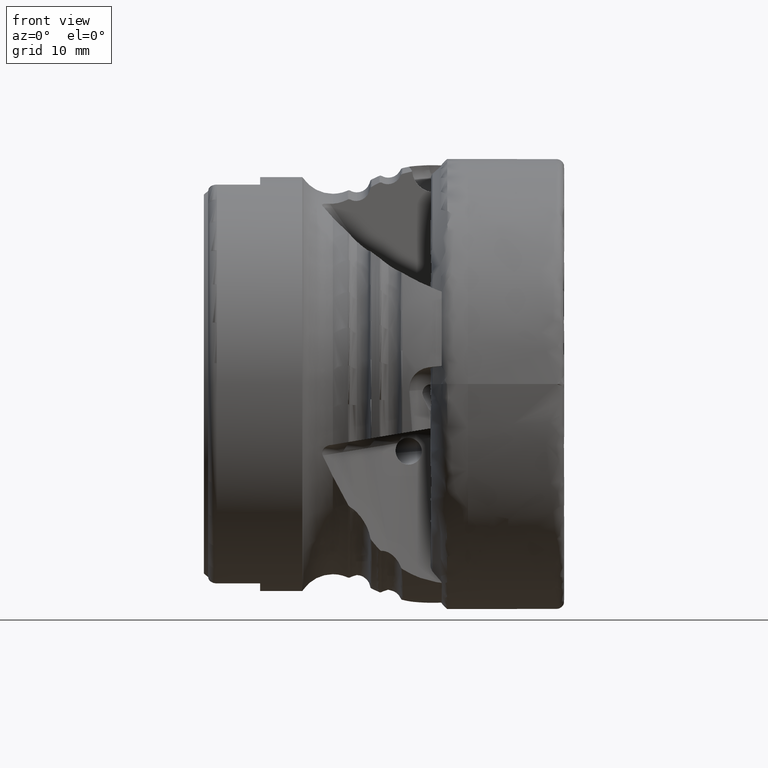
[diagram: clean part render]
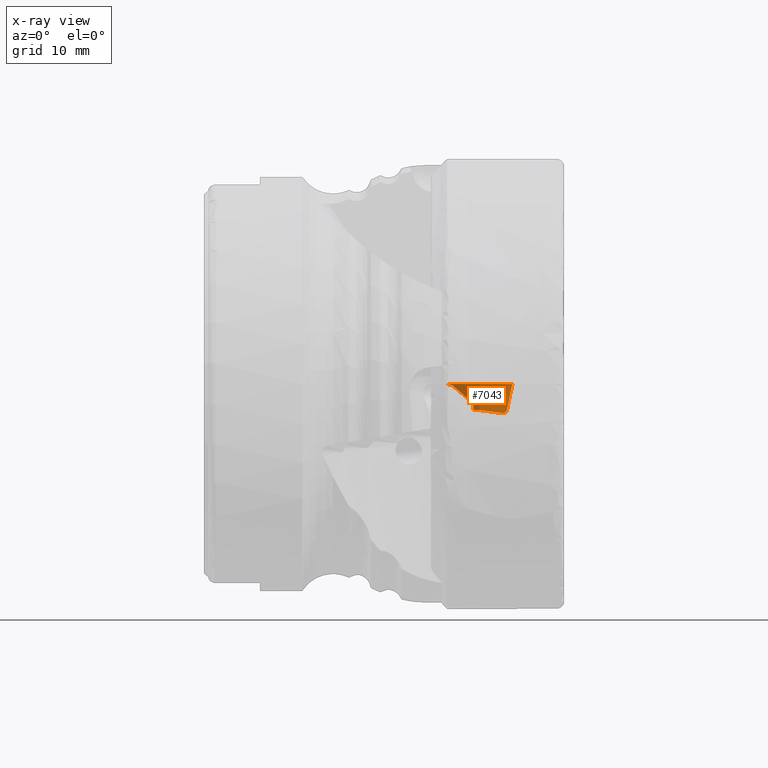
[diagram: x-ray — body ghosted, one internal face saturated and labeled with its STEP entity id]
A machine part, front view, then the same camera in x-ray: the body is ghosted and one INTERNAL B-rep face — a face not visible from any outside direction — is saturated and labeled: STEP entity #7043.
In plain terms, the highlighted face is a freeform B-spline surface patch.
Its self-contained STEP definition (entity closure, byte-faithful):
#12 = CARTESIAN_POINT ( 'NONE',  ( -9.327733172968539300, 13.47254433236477500, -2.097750486982430800 ) ) ;
#68 = CARTESIAN_POINT ( 'NONE',  ( -9.022713587255351400, 12.75545056541306200, -2.922412867499101900 ) ) ;
#200 = CARTESIAN_POINT ( 'NONE',  ( -5.050276232107880700, 11.11171256493070700, -1.105884605139769500 ) ) ;
#222 = CARTESIAN_POINT ( 'NONE',  ( -8.604400643255553800, 11.80468172274491100, -2.908084505969913600 ) ) ;
#224 = VERTEX_POINT ( 'NONE', #6227 ) ;
#294 = CARTESIAN_POINT ( 'NONE',  ( -6.285281551935681500, 11.31469702868192900, -1.126086477014450700 ) ) ;
#351 = CARTESIAN_POINT ( 'NONE',  ( -5.050276232107880700, 10.94783426609678200, -2.199559448526297300 ) ) ;
#448 = CARTESIAN_POINT ( 'NONE',  ( -9.297918661963407800, 13.38187534570622400, -2.688589326457111500 ) ) ;
#490 = CARTESIAN_POINT ( 'NONE',  ( -9.675087337857400300, 14.22072697437721800, -1.415306861382773500 ) ) ;
#495 = EDGE_CURVE ( 'NONE', #11996, #5180, #8086, .T. ) ;
#522 = CARTESIAN_POINT ( 'NONE',  ( -5.972594624334143500, 11.19284881002046500, -1.370728646853182100E-015 ) ) ;
#540 = CARTESIAN_POINT ( 'NONE',  ( -8.697320431042678400, 12.32520806946325800, -1.226656807356756500 ) ) ;
#594 = CARTESIAN_POINT ( 'NONE',  ( -9.191007835841970700, 13.39078045257451100, 5.811323644522303800E-014 ) ) ;
#630 = CARTESIAN_POINT ( 'NONE',  ( -9.675087337857400300, 14.22072697437720900, -1.741536777071947200E-015 ) ) ;
#647 = CARTESIAN_POINT ( 'NONE',  ( -7.881515647654891800, 11.33412013398271000, -3.474667101268508900 ) ) ;
#685 = CARTESIAN_POINT ( 'NONE',  ( -8.612288684682059900, 12.18211301162843400, -1.491878570654208600E-015 ) ) ;
#697 = CARTESIAN_POINT ( 'NONE',  ( -11.61672753739851100, 17.98962876824163400, 7.806255641895631900E-014 ) ) ;
#714 = CARTESIAN_POINT ( 'NONE',  ( -9.453979345196078300, 13.70888033134533400, -2.001711997554833600 ) ) ;
#806 = CARTESIAN_POINT ( 'NONE',  ( -11.24200181012750100, 17.01490707717644200, -3.418511709050888300 ) ) ;
#870 = CARTESIAN_POINT ( 'NONE',  ( -9.268775923578369100, 13.27279578968369300, -2.627351999662451500 ) ) ;
#924 = CARTESIAN_POINT ( 'NONE',  ( -9.198759914608093200, 13.09425418710934600, -2.878641764758926400 ) ) ;
#1128 = CARTESIAN_POINT ( 'NONE',  ( -9.260172563981408100, 13.27720306228545500, -2.521842621178799400 ) ) ;
#1208 = CARTESIAN_POINT ( 'NONE',  ( -10.23060515299965100, 15.26960796372149100, -1.314476557952900700 ) ) ;
#1259 = CARTESIAN_POINT ( 'NONE',  ( -9.753074190731954500, 14.27494363536506400, -1.766847344200421300 ) ) ;
#1366 = CARTESIAN_POINT ( 'NONE',  ( -8.173395873958789100, 11.57049893888079800, -2.959438690530028700 ) ) ;
#1391 = CARTESIAN_POINT ( 'NONE',  ( -5.751385641358613300, 10.62254100904486100, -3.256520430318925000 ) ) ;
#1409 = CARTESIAN_POINT ( 'NONE',  ( -5.932567042074834900, 10.69350056984833900, -3.256637702511473400 ) ) ;
#1438 = CARTESIAN_POINT ( 'NONE',  ( -5.050276232107879800, 11.11171256493070600, 4.770489558936219500E-014 ) ) ;
#1465 = B_SPLINE_CURVE_WITH_KNOTS ( 'NONE', 3,
 ( #14805, #3220, #10152, #714, #1857, #1907, #8884 ),
 .UNSPECIFIED., .F., .F.,
 ( 4, 3, 4 ),
 ( 1.788112030672749000E-018, 0.0002846334342057872200, 0.0005693134101099638900 ),
 .UNSPECIFIED. ) ;
#1491 = CARTESIAN_POINT ( 'NONE',  ( -5.585466795970161200, 10.55039281965642700, -3.234402177016453300 ) ) ;
#1540 = CARTESIAN_POINT ( 'NONE',  ( -6.914384804467702300, 11.04166457576252300, -3.385009880882780700 ) ) ;
#1587 = CARTESIAN_POINT ( 'NONE',  ( -7.164567537284028700, 11.63161736953586500, 4.987329993433320400E-014 ) ) ;
#1637 = CARTESIAN_POINT ( 'NONE',  ( -8.574156164133272600, 11.54864064897245500, -3.540432009984023400 ) ) ;
#1687 = CARTESIAN_POINT ( 'NONE',  ( -10.11790348174986900, 14.88394821685731800, -2.990374912154815800 ) ) ;
#1703 = ORIENTED_EDGE ( 'NONE', *, *, #10097, .F. ) ;
#1738 = CARTESIAN_POINT ( 'NONE',  ( -9.675087337857400300, 13.59616568424822900, -4.168135598352149500 ) ) ;
#1758 = CARTESIAN_POINT ( 'NONE',  ( -5.522037365477625100, 10.64921861473035100, -2.914298168814653400 ) ) ;
#1785 = CARTESIAN_POINT ( 'NONE',  ( -8.237730382612779700, 11.96314495333715300, -1.190622755551234100 ) ) ;
#1827 = CARTESIAN_POINT ( 'NONE',  ( -9.191007835841970700, 13.39078045257450900, -1.639897641933031800E-015 ) ) ;
#1838 = CARTESIAN_POINT ( 'NONE',  ( -9.100063648910188300, 12.90944086147559800, -2.923127320339364000 ) ) ;
#1842 = CARTESIAN_POINT ( 'NONE',  ( -7.485648292287563300, 11.71447879099634500, -1.165874447930338200 ) ) ;
#1857 = CARTESIAN_POINT ( 'NONE',  ( -9.496981936507854300, 13.78748707756267700, -1.970440300205801100 ) ) ;
#1897 = CARTESIAN_POINT ( 'NONE',  ( -11.24200181012750300, 16.51113833094985800, -5.061769990511416000 ) ) ;
#1907 = CARTESIAN_POINT ( 'NONE',  ( -9.540599783445985700, 13.86596572222189900, -1.939686145547635700 ) ) ;
#1926 = CARTESIAN_POINT ( 'NONE',  ( -10.40198357540867700, 15.65283747423813100, -1.916919731039946700E-015 ) ) ;
#1941 = CARTESIAN_POINT ( 'NONE',  ( -12.00900473343443900, 18.74272875410185400, -1.865355593600252800 ) ) ;
#1972 = CARTESIAN_POINT ( 'NONE',  ( -12.13905769514250600, 18.99334384272782100, -2.326013774210171800E-015 ) ) ;
#2037 = CARTESIAN_POINT ( 'NONE',  ( -12.13905769514250600, 18.99334384272782800, -1.890297866603418900 ) ) ;
#2080 = CARTESIAN_POINT ( 'NONE',  ( -12.32536582493238700, 19.34448125936291200, 8.326672684688674100E-014 ) ) ;
#2382 = CARTESIAN_POINT ( 'NONE',  ( -6.987414104110923700, 11.14458807036642600, -3.120126934605866000 ) ) ;
#2442 = CARTESIAN_POINT ( 'NONE',  ( -9.908307203312228100, 14.60692162358216400, -1.612479613385117400 ) ) ;
#2482 = CARTESIAN_POINT ( 'NONE',  ( -8.642016997257949000, 11.88262707674004100, -2.908703173846212100 ) ) ;
#2490 = CARTESIAN_POINT ( 'NONE',  ( -11.23555316334822900, 17.25358354494659700, -0.4549852518349870600 ) ) ;
#2558 = CARTESIAN_POINT ( 'NONE',  ( -4.862334954928847700, 11.09165466854700500, -2.228454800557692700 ) ) ;
#2578 = CARTESIAN_POINT ( 'NONE',  ( -5.882490573300068500, 10.67505638054573500, -3.252631752760433600 ) ) ;
#2605 = B_SPLINE_CURVE_WITH_KNOTS ( 'NONE', 3,
 ( #2926, #2780, #8781, #7552 ),
 .UNSPECIFIED., .F., .F.,
 ( 4, 4 ),
 ( 0.001614292485619181800, 0.003105760326318145200 ),
 .UNSPECIFIED. ) ;
#2610 = CARTESIAN_POINT ( 'NONE',  ( -4.905304933193193900, 11.21846603086572200, -1.116509161330633700 ) ) ;
#2658 = CARTESIAN_POINT ( 'NONE',  ( -6.634472088039784100, 10.94083963478700600, -3.354100282144315800 ) ) ;
#2708 = CARTESIAN_POINT ( 'NONE',  ( -6.914384804467701400, 11.54888083310773300, -1.149393439156804400 ) ) ;
#2724 = CARTESIAN_POINT ( 'NONE',  ( -5.784644675520819000, 10.64477182791467400, -3.225074104981703100 ) ) ;
#2761 = CARTESIAN_POINT ( 'NONE',  ( -5.585466795970161200, 11.03504173493452000, 4.770489558936219500E-014 ) ) ;
#2780 = CARTESIAN_POINT ( 'NONE',  ( -12.06035103561225500, 18.84368438268096900, -0.04808295347537695100 ) ) ;
#2812 = CARTESIAN_POINT ( 'NONE',  ( -8.612288684682059900, 12.18211301162844000, -1.212415382319311100 ) ) ;
#2857 = CARTESIAN_POINT ( 'NONE',  ( -9.191007835841970700, 13.39078045257451600, -1.332707075239310000 ) ) ;
#2889 = CARTESIAN_POINT ( 'NONE',  ( -4.944788779723490200, 11.19075671436133300, -1.370472439027935900E-015 ) ) ;
#2905 = CARTESIAN_POINT ( 'NONE',  ( -9.038364078933765800, 13.15433350174967900, -1.309174875200705500 ) ) ;
#2926 = CARTESIAN_POINT ( 'NONE',  ( -12.29181021467512900, 19.28104108027483600, 9.167267699501834300E-014 ) ) ;
#2961 = CARTESIAN_POINT ( 'NONE',  ( -7.881515647654892700, 11.67993369177811900, -2.346647554710441100 ) ) ;
#2996 = CARTESIAN_POINT ( 'NONE',  ( -11.24200181012750300, 17.26960348185804900, -2.114916462660144600E-015 ) ) ;
#3009 = CARTESIAN_POINT ( 'NONE',  ( -9.191007835841970700, 13.19328989404869500, -2.650700105450862800 ) ) ;
#3054 = CARTESIAN_POINT ( 'NONE',  ( -10.40198357540867500, 15.42198553650012400, -3.098473467660444000 ) ) ;
#3092 = CARTESIAN_POINT ( 'NONE',  ( -8.237730382612777900, 11.96314495333715100, -1.465062717484015400E-015 ) ) ;
#3106 = CARTESIAN_POINT ( 'NONE',  ( -10.40198357540867700, 14.96537920401720700, -4.587891266680464300 ) ) ;
#3220 = CARTESIAN_POINT ( 'NONE',  ( -9.368951883391822800, 13.55150381744491700, -2.065066902060640700 ) ) ;
#3231 = CARTESIAN_POINT ( 'NONE',  ( -9.260172563981408100, 13.27720306228545500, -2.521842621178799400 ) ) ;
#3613 = CARTESIAN_POINT ( 'NONE',  ( -9.583202593859116500, 13.94458282703550400, -1.907897565190465900 ) ) ;
#3653 = CARTESIAN_POINT ( 'NONE',  ( -8.401227916553795100, 11.68010978559672700, -2.931034825561166000 ) ) ;
#3705 = CARTESIAN_POINT ( 'NONE',  ( -8.881046189209252300, 12.34473873205105800, -2.909691134102968800 ) ) ;
#3734 = B_SPLINE_CURVE_WITH_KNOTS ( 'NONE', 3,
 ( #14253, #2490, #4746, #8303, #1208, #7218, #2442, #1259, #9463, #3613 ),
 .UNSPECIFIED., .F., .F.,
 ( 4, 2, 2, 2, 4 ),
 ( 0.0003826909560914337100, 0.002766956170908373100, 0.003959088778316843600, 0.004555155082021076500, 0.005151221385725308600 ),
 .UNSPECIFIED. ) ;
#3758 = CARTESIAN_POINT ( 'NONE',  ( -8.480317839948913400, 11.70758827916628800, -2.920236973401594900 ) ) ;
#3808 = VERTEX_POINT ( 'NONE', #12 ) ;
#3829 = CARTESIAN_POINT ( 'NONE',  ( -5.751385641358613300, 11.11050416506489600, 4.857225732735059900E-014 ) ) ;
#3880 = CARTESIAN_POINT ( 'NONE',  ( -4.862334954928848600, 11.25768581718832500, 4.857225732735059900E-014 ) ) ;
#3903 = CARTESIAN_POINT ( 'NONE',  ( -5.406992720258307000, 10.76797387388827200, -2.436262660639883400 ) ) ;
#3961 = EDGE_CURVE ( 'NONE', #7659, #11077, #7429, .T. ) ;
#3979 = CARTESIAN_POINT ( 'NONE',  ( -8.612288684682059900, 12.18211301162843400, 5.247538514829841500E-014 ) ) ;
#4039 = CARTESIAN_POINT ( 'NONE',  ( -8.237730382612777900, 11.96314495333715100, 5.204170427930421300E-014 ) ) ;
#4070 = CARTESIAN_POINT ( 'NONE',  ( -6.914384804467702300, 11.54888083310772600, -1.414329994599959400E-015 ) ) ;
#4087 = CARTESIAN_POINT ( 'NONE',  ( -8.798417230669020500, 12.54074650627155000, -1.248108103697382900 ) ) ;
#4119 = CARTESIAN_POINT ( 'NONE',  ( -10.11790348174987000, 15.10674626571565500, -1.850042845983991000E-015 ) ) ;
#4132 = CARTESIAN_POINT ( 'NONE',  ( -9.450556746835104600, 13.64900529517592200, -2.742259138226184500 ) ) ;
#4171 = CARTESIAN_POINT ( 'NONE',  ( -9.898619577641762000, 14.67984895457056500, -1.797763003418145800E-015 ) ) ;
#4186 = CARTESIAN_POINT ( 'NONE',  ( -9.297918661963411300, 13.58218884274675300, 5.898059818321144100E-014 ) ) ;
#4223 = CARTESIAN_POINT ( 'NONE',  ( -12.29181021467512900, 19.28104108027483600, 9.167267699501834300E-014 ) ) ;
#4239 = CARTESIAN_POINT ( 'NONE',  ( -12.30228312725936000, 19.30082138329078800, 8.326672684688674100E-014 ) ) ;
#4288 = CARTESIAN_POINT ( 'NONE',  ( -12.30228312725936000, 18.45314700451838900, -5.657125745405426000 ) ) ;
#4336 = CARTESIAN_POINT ( 'NONE',  ( -12.23483759173127300, 19.17334540341383000, 8.413408858487514400E-014 ) ) ;
#4388 = CARTESIAN_POINT ( 'NONE',  ( -10.78212727391878500, 16.38528376852800200, 7.112366251504909100E-014 ) ) ;
#4444 = CARTESIAN_POINT ( 'NONE',  ( -11.61672753739851200, 17.72431325166701700, -3.561040451815638900 ) ) ;
#4516 = CARTESIAN_POINT ( 'NONE',  ( -11.58698055360982300, 17.93167654046071700, -0.1677140585724605200 ) ) ;
#4671 = B_SPLINE_CURVE_WITH_KNOTS ( 'NONE', 3,
 ( #9802, #5198, #12171, #10992, #14488, #3903, #14707, #1758 ),
 .UNSPECIFIED., .F., .F.,
 ( 4, 2, 2, 4 ),
 ( 0.003531020087543627000, 0.005035593475905058100, 0.005787880170085773200, 0.006540166864266488300 ),
 .UNSPECIFIED. ) ;
#4737 = CARTESIAN_POINT ( 'NONE',  ( -8.014505462550426200, 11.51551800054723000, -2.981151178054440600 ) ) ;
#4740 = CARTESIAN_POINT ( 'NONE',  ( -5.522037365477625100, 10.64921861473035100, -2.914298168814653400 ) ) ;
#4746 = CARTESIAN_POINT ( 'NONE',  ( -10.89676347886399000, 16.59266686662482800, -0.7380291181383646900 ) ) ;
#4757 = B_SPLINE_CURVE_WITH_KNOTS ( 'NONE', 3,
 ( #7158, #11834, #8230, #4892, #10580, #2382, #9504, #9404, #12964, #10787, #8384, #4737, #1366, #5914, #3653, #6064, #3758, #13071, #9560, #8341, #11974, #222, #10635, #2482, #6012, #14149, #7107, #10739, #3705, #13014, #68, #8291 ),
 .UNSPECIFIED., .F., .F.,
 ( 4, 2, 2, 2, 2, 2, 2, 2, 2, 2, 2, 2, 2, 2, 2, 4 ),
 ( 0.0002380941263314999200, 0.0007466962159711510500, 0.001255298305610802000, 0.001509599350430626700, 0.001763900395250451400, 0.002272502484890098200, 0.002781104574529740100, 0.002908255096939650500, 0.002971830358144603300, 0.003035405619349556200, 0.003098980880554509000, 0.003162556141759461800, 0.003289706664169362200, 0.003544007708989159500, 0.003798308753808956500, 0.004306910843448550300 ),
 .UNSPECIFIED. ) ;
#4892 = CARTESIAN_POINT ( 'NONE',  ( -6.599204083381899900, 10.98237673724776000, -3.170703357814495000 ) ) ;
#4920 = CARTESIAN_POINT ( 'NONE',  ( -4.905304933193194800, 11.21846603086571800, 4.857225732735059900E-014 ) ) ;
#4974 = CARTESIAN_POINT ( 'NONE',  ( -5.317590935306478500, 10.54640272405776900, -3.233178945416321300 ) ) ;
#4993 = CARTESIAN_POINT ( 'NONE',  ( -5.522037365477625100, 10.64921861473035100, -2.914298168814653400 ) ) ;
#5075 = CARTESIAN_POINT ( 'NONE',  ( -5.317590935306478500, 11.03086834800853900, -1.097838646932482800 ) ) ;
#5099 = EDGE_CURVE ( 'NONE', #224, #13609, #6849, .T. ) ;
#5179 = CARTESIAN_POINT ( 'NONE',  ( -8.798417230669020500, 12.35579245967017100, -2.482436195883972900 ) ) ;
#5180 = VERTEX_POINT ( 'NONE', #12011 ) ;
#5198 = CARTESIAN_POINT ( 'NONE',  ( -5.007416417487032600, 11.14295466156286100, -0.4927387812540918700 ) ) ;
#5225 = CARTESIAN_POINT ( 'NONE',  ( -7.881515647654892700, 11.85477079812975800, -1.179836901513114500 ) ) ;
#5270 = CARTESIAN_POINT ( 'NONE',  ( -8.965905260980434800, 12.83225122961725100, -1.277119885993746000 ) ) ;
#5302 = CARTESIAN_POINT ( 'NONE',  ( -12.22359994100683200, 19.15222620470004600, -2.345471251813197600E-015 ) ) ;
#5323 = CARTESIAN_POINT ( 'NONE',  ( -9.450556746835104600, 13.85331746452209800, 5.984795992119984500E-014 ) ) ;
#5356 = CARTESIAN_POINT ( 'NONE',  ( -11.87291021087519600, 18.48181776683135500, -2.263369897057470300E-015 ) ) ;
#5371 = CARTESIAN_POINT ( 'NONE',  ( -7.485648292287563300, 11.54171074603687700, -2.318876803078787900 ) ) ;
#5418 = CARTESIAN_POINT ( 'NONE',  ( -11.87291021087519600, 18.48181776683135500, 7.979727989493312600E-014 ) ) ;
#5445 = EDGE_CURVE ( 'NONE', #13609, #3808, #7313, .T. ) ;
#5464 = CARTESIAN_POINT ( 'NONE',  ( -12.23483759173126900, 19.17334540341384000, -1.908212382813280600 ) ) ;
#5492 = CARTESIAN_POINT ( 'NONE',  ( -9.583202593859116500, 13.94458282703550400, -1.907897565190465900 ) ) ;
#5570 = CARTESIAN_POINT ( 'NONE',  ( -11.60470625520284000, 17.96588499904633800, -0.1507967930304986200 ) ) ;
#5613 = CARTESIAN_POINT ( 'NONE',  ( -9.297062632476286800, 13.41379115790761700, -2.122070103110186100 ) ) ;
#5693 = CARTESIAN_POINT ( 'NONE',  ( -11.60470625520284000, 17.96588499904633800, -0.1507967930304986200 ) ) ;
#5797 = CARTESIAN_POINT ( 'NONE',  ( -11.59591966479179900, 17.94892791274579800, -0.1595874628092139000 ) ) ;
#5839 = CARTESIAN_POINT ( 'NONE',  ( -9.249932684710485000, 13.28244868044809100, -2.396263388383316400 ) ) ;
#5914 = CARTESIAN_POINT ( 'NONE',  ( -8.363725185981483200, 11.66044954566518400, -2.935566828485711300 ) ) ;
#5991 = CARTESIAN_POINT ( 'NONE',  ( -9.231318165921150500, 13.29149656316829800, -2.144945003314624000 ) ) ;
#6012 = CARTESIAN_POINT ( 'NONE',  ( -8.663467864475510500, 11.92033263337983100, -2.908457884524648500 ) ) ;
#6044 = CARTESIAN_POINT ( 'NONE',  ( -9.240340964284987600, 13.28721523831061000, -2.270629198383004300 ) ) ;
#6064 = CARTESIAN_POINT ( 'NONE',  ( -8.460154521544263100, 11.70192417126673400, -2.923108765126377000 ) ) ;
#6141 = CARTESIAN_POINT ( 'NONE',  ( -4.905304933193194800, 10.72576128868691600, -3.288164360824006300 ) ) ;
#6172 = FACE_OUTER_BOUND ( 'NONE', #11323, .T. ) ;
#6197 = CARTESIAN_POINT ( 'NONE',  ( -6.634472088039784100, 11.44342433962871300, 4.943961906533900200E-014 ) ) ;
#6227 = CARTESIAN_POINT ( 'NONE',  ( -9.260172563981408100, 13.27720306228545500, -2.521842621178799400 ) ) ;
#6245 = CARTESIAN_POINT ( 'NONE',  ( -7.164567537284029600, 11.46007138541612700, -2.302474414929643700 ) ) ;
#6297 = CARTESIAN_POINT ( 'NONE',  ( -8.458477633135085900, 11.53902606312805900, -3.537484495335252400 ) ) ;
#6342 = CARTESIAN_POINT ( 'NONE',  ( -9.898619577641762000, 14.46334689336655400, -2.905870745151507800 ) ) ;
#6363 = EDGE_CURVE ( 'NONE', #224, #7873, #13534, .T. ) ;
#6393 = CARTESIAN_POINT ( 'NONE',  ( -8.798417230669024000, 12.54074650627154400, 5.421010862427522200E-014 ) ) ;
#6448 = CARTESIAN_POINT ( 'NONE',  ( -8.697320431042676600, 11.78389623168998300, -3.612553606014001800 ) ) ;
#6490 = CARTESIAN_POINT ( 'NONE',  ( -8.965905260980438400, 12.83225122961724700, -1.571497539420544800E-015 ) ) ;
#6503 = CARTESIAN_POINT ( 'NONE',  ( -8.458477633135087700, 11.89109147351841700, -2.389071844544188700 ) ) ;
#6532 = EDGE_CURVE ( 'NONE', #8351, #11996, #2605, .T. ) ;
#6534 = EDGE_CURVE ( 'NONE', #11014, #11077, #4671, .T. ) ;
#6536 = CARTESIAN_POINT ( 'NONE',  ( -10.78212727391878500, 16.38528376852800200, -2.006618532024890100E-015 ) ) ;
#6549 = CARTESIAN_POINT ( 'NONE',  ( -12.32536582493238700, 19.34448125936292200, -1.925244546611220700 ) ) ;
#6606 = CARTESIAN_POINT ( 'NONE',  ( -12.13905769514250600, 18.71322528675134900, -3.759725484641463400 ) ) ;
#6655 = CARTESIAN_POINT ( 'NONE',  ( -10.78212727391878500, 15.66565712862132800, -4.802573362652877300 ) ) ;
#6752 = CARTESIAN_POINT ( 'NONE',  ( -12.00900473343443900, 18.46630633174530100, -3.710116319275696300 ) ) ;
#6849 = B_SPLINE_CURVE_WITH_KNOTS ( 'NONE', 3,
 ( #1128, #5839, #6044, #5991 ),
 .UNSPECIFIED., .F., .F.,
 ( 4, 4 ),
 ( 1.781570511087706400E-015, 0.0003782228735485892000 ),
 .UNSPECIFIED. ) ;
#7043 = ADVANCED_FACE ( 'NONE', ( #6172 ), #9660, .F. ) ;
#7107 = CARTESIAN_POINT ( 'NONE',  ( -8.760136367942429600, 12.11410076309962000, -2.909467696929046300 ) ) ;
#7158 = CARTESIAN_POINT ( 'NONE',  ( -5.981210349071848700, 10.71478902759636600, -3.250385825934857900 ) ) ;
#7218 = CARTESIAN_POINT ( 'NONE',  ( -9.987249896434367000, 14.77276830990875700, -1.536498694779872700 ) ) ;
#7255 = EDGE_CURVE ( 'NONE', #5180, #11500, #3734, .T. ) ;
#7313 = B_SPLINE_CURVE_WITH_KNOTS ( 'NONE', 3,
 ( #9224, #10235, #5613, #14901 ),
 .UNSPECIFIED., .F., .F.,
 ( 4, 4 ),
 ( 0.0002064370009215792600, 0.0004152317936918188700 ),
 .UNSPECIFIED. ) ;
#7332 = CARTESIAN_POINT ( 'NONE',  ( -6.285281551935681500, 11.14782506452279500, -2.239740149074395800 ) ) ;
#7385 = CARTESIAN_POINT ( 'NONE',  ( -5.972594624334142600, 11.19284881002046800, -1.113959627224734300 ) ) ;
#7423 = CARTESIAN_POINT ( 'NONE',  ( -7.485648292287563300, 11.71447879099634200, -1.434609895507322400E-015 ) ) ;
#7429 = B_SPLINE_CURVE_WITH_KNOTS ( 'NONE', 3,
 ( #9654, #1409, #2578, #2724, #13256, #10832, #12021, #4993 ),
 .UNSPECIFIED., .F., .F.,
 ( 4, 2, 2, 4 ),
 ( 0.0000000000000000000, 0.0001580883704593597400, 0.0003161767409187194900, 0.0006323534818374376700 ),
 .UNSPECIFIED. ) ;
#7437 = CARTESIAN_POINT ( 'NONE',  ( -7.164567537284029600, 11.63161736953587200, -1.157627729000410000 ) ) ;
#7481 = CARTESIAN_POINT ( 'NONE',  ( -9.898619577641762000, 14.67984895457056500, 6.331740687315345900E-014 ) ) ;
#7530 = CARTESIAN_POINT ( 'NONE',  ( -8.237730382612777900, 11.43773459565862200, -3.506431874973481700 ) ) ;
#7552 = CARTESIAN_POINT ( 'NONE',  ( -11.60470625520284000, 17.96588499904633800, -0.1507967930304986200 ) ) ;
#7568 = CARTESIAN_POINT ( 'NONE',  ( -5.751385641358613300, 11.11050416506489400, -1.360644336266006000E-015 ) ) ;
#7581 = CARTESIAN_POINT ( 'NONE',  ( -8.574156164133272600, 12.07914565093154400, 5.204170427930421300E-014 ) ) ;
#7633 = CARTESIAN_POINT ( 'NONE',  ( -9.038364078933765800, 12.96033012162586000, -2.603895517794104600 ) ) ;
#7659 = VERTEX_POINT ( 'NONE', #8312 ) ;
#7684 = CARTESIAN_POINT ( 'NONE',  ( -7.881515647654891800, 11.85477079812975500, 5.117434254131580900E-014 ) ) ;
#7738 = CARTESIAN_POINT ( 'NONE',  ( -11.24200181012750100, 17.26960348185805600, -1.718743939411292900 ) ) ;
#7790 = ORIENTED_EDGE ( 'NONE', *, *, #6534, .F. ) ;
#7796 = CARTESIAN_POINT ( 'NONE',  ( -11.87291021087519400, 18.48181776683136200, -1.839388629241862000 ) ) ;
#7828 = CARTESIAN_POINT ( 'NONE',  ( -8.697320431042676600, 12.32520806946325500, -1.509402661109330300E-015 ) ) ;
#7873 = VERTEX_POINT ( 'NONE', #1838 ) ;
#7895 = CARTESIAN_POINT ( 'NONE',  ( -11.61672753739851100, 17.19954076692646100, -5.272811453672658500 ) ) ;
#8075 = ORIENTED_EDGE ( 'NONE', *, *, #6363, .T. ) ;
#8086 = B_SPLINE_CURVE_WITH_KNOTS ( 'NONE', 3,
 ( #5693, #5797, #4516, #12845 ),
 .UNSPECIFIED., .F., .F.,
 ( 4, 4 ),
 ( 0.0004581181565553132400, 0.0005206128698629884400 ),
 .UNSPECIFIED. ) ;
#8230 = CARTESIAN_POINT ( 'NONE',  ( -6.289538433953808300, 10.85020608870821800, -3.210800480202693000 ) ) ;
#8291 = CARTESIAN_POINT ( 'NONE',  ( -9.100063648910188300, 12.90944086147559800, -2.923127320339364000 ) ) ;
#8303 = CARTESIAN_POINT ( 'NONE',  ( -10.39696882712476800, 15.60039156535750800, -1.170205137394206200 ) ) ;
#8312 = CARTESIAN_POINT ( 'NONE',  ( -5.981210349071848700, 10.71478902759636600, -3.250385825934857900 ) ) ;
#8341 = CARTESIAN_POINT ( 'NONE',  ( -8.578679619064383000, 11.74383856109408900, -2.906992149363859700 ) ) ;
#8351 = VERTEX_POINT ( 'NONE', #12312 ) ;
#8384 = CARTESIAN_POINT ( 'NONE',  ( -7.700068511978535000, 11.39680792443445000, -3.023240646928050600 ) ) ;
#8412 = CARTESIAN_POINT ( 'NONE',  ( -5.585466795970160300, 10.87229419655867500, -2.184382485699098500 ) ) ;
#8452 = ORIENTED_EDGE ( 'NONE', *, *, #13304, .F. ) ;
#8516 = CARTESIAN_POINT ( 'NONE',  ( -5.972594624334143500, 11.19284881002046600, 4.900593819634480000E-014 ) ) ;
#8563 = CARTESIAN_POINT ( 'NONE',  ( -4.862334954928847700, 11.25768581718833000, -1.120412480252680700 ) ) ;
#8614 = CARTESIAN_POINT ( 'NONE',  ( -6.285281551935681500, 10.81776590931053800, -3.316369940495522700 ) ) ;
#8669 = CARTESIAN_POINT ( 'NONE',  ( -8.237730382612779700, 11.78670951800704700, -2.368100179197400100 ) ) ;
#8713 = CARTESIAN_POINT ( 'NONE',  ( -8.965905260980438400, 12.26867052114366200, -3.761169401081776400 ) ) ;
#8748 = CARTESIAN_POINT ( 'NONE',  ( -6.285281551935681500, 11.31469702868192300, -1.385650749949738700E-015 ) ) ;
#8762 = CARTESIAN_POINT ( 'NONE',  ( -9.450556746835104600, 13.24489246319848100, -4.060446824075033800 ) ) ;
#8781 = CARTESIAN_POINT ( 'NONE',  ( -11.83284756306324300, 18.40468132996528200, -0.1000160980669185900 ) ) ;
#8817 = CARTESIAN_POINT ( 'NONE',  ( -9.450556746835104600, 13.85331746452210100, -1.378740713873426900 ) ) ;
#8868 = CARTESIAN_POINT ( 'NONE',  ( -9.297918661963411300, 12.98567156190128100, -3.980978252447846100 ) ) ;
#8884 = CARTESIAN_POINT ( 'NONE',  ( -9.583202593859116500, 13.94458282703550400, -1.907897565190465900 ) ) ;
#9016 = CARTESIAN_POINT ( 'NONE',  ( -12.00900473343444100, 18.74272875410185400, 8.239936510889833700E-014 ) ) ;
#9110 = CARTESIAN_POINT ( 'NONE',  ( -12.23483759173127300, 18.33126965279847900, -5.619762172458886000 ) ) ;
#9199 = CARTESIAN_POINT ( 'NONE',  ( -9.257247567605498200, 13.23010221274210700, -2.730569257094102000 ) ) ;
#9224 = CARTESIAN_POINT ( 'NONE',  ( -9.231318165921150500, 13.29149656316829800, -2.144945003314624000 ) ) ;
#9257 = B_SPLINE_CURVE_WITH_KNOTS ( 'NONE', 3,
 ( #11012, #2889, #14670, #9719, #10954, #7568, #522, #8748, #11112, #4070, #14457, #7423, #14781, #3092, #13686, #11276, #685, #7828, #12395, #6490, #13585, #1827, #10120, #13637, #630, #4171, #4119, #1926, #6536, #2996, #11218, #5356, #12346, #1972, #5302, #10018, #4223 ),
 .UNSPECIFIED., .F., .F.,
 ( 4, 1, 1, 1, 1, 1, 1, 1, 1, 1, 1, 1, 1, 1, 1, 1, 1, 1, 1, 1, 1, 1, 1, 1, 1, 1, 1, 1, 1, 1, 1, 1, 1, 1, 4 ),
 ( 0.04709480978401539600, 0.04927839425884206200, 0.05700238509953481400, 0.06310431811836414400, 0.06595758328909751000, 0.06864192353363374200, 0.07829112826487183400, 0.08751576119256931900, 0.09256675938492664500, 0.09751490194669987200, 0.1044487800361109100, 0.1138425962349473000, 0.1246216271508197000, 0.1279340107490893900, 0.1300945621244037300, 0.1310421250694818700, 0.1346159233658608100, 0.1410166079049400800, 0.1462155911019189500, 0.1561954818090830500, 0.1618092637826256100, 0.1641935108105092600, 0.1702954025104467300, 0.1818047524838509700, 0.1918477541508438700, 0.2030950151113956000, 0.2126566311313458100, 0.2314123780923532700, 0.2561375143356797700, 0.2767233838021306800, 0.2835852848685520600, 0.2918022887069181600, 0.2956380934001791000, 0.3017335426589667900, 0.3033702405920419800 ),
 .UNSPECIFIED. ) ;
#9404 = CARTESIAN_POINT ( 'NONE',  ( -7.224679101835326900, 11.22948553796006800, -3.087952546348173800 ) ) ;
#9463 = CARTESIAN_POINT ( 'NONE',  ( -9.672409792445195700, 14.10920134899122600, -1.841334580889846500 ) ) ;
#9504 = CARTESIAN_POINT ( 'NONE',  ( -7.065949023113411400, 11.17447940521610600, -3.109635968759565800 ) ) ;
#9560 = CARTESIAN_POINT ( 'NONE',  ( -8.541927677309907100, 11.72140862629001400, -2.911152851278819400 ) ) ;
#9635 = CARTESIAN_POINT ( 'NONE',  ( -5.317590935306478500, 11.03086834800853400, 4.770489558936219500E-014 ) ) ;
#9654 = CARTESIAN_POINT ( 'NONE',  ( -5.981210349071848700, 10.71478902759636600, -3.250385825934857900 ) ) ;
#9660 =( BOUNDED_SURFACE ( )  B_SPLINE_SURFACE ( 3, 3, ( 
 ( #14318, #2558, #8563, #3880 ),
 ( #6141, #13291, #2610, #4920 ),
 ( #13141, #351, #200, #1438 ),
 ( #4974, #13336, #5075, #9635 ),
 ( #1491, #8412, #13187, #2761 ),
 ( #1391, #14421, #14369, #3829 ),
 ( #10971, #13236, #7385, #8516 ),
 ( #8614, #7332, #294, #9686 ),
 ( #2658, #10869, #14467, #6197 ),
 ( #1540, #9737, #2708, #10923 ),
 ( #12097, #6245, #7437, #1587 ),
 ( #13448, #5371, #1842, #9983 ),
 ( #647, #2961, #5225, #7684 ),
 ( #7530, #8669, #1785, #4039 ),
 ( #6297, #6503, #10031, #11180 ),
 ( #1637, #12205, #13498, #7581 ),
 ( #12412, #9833, #2812, #3979 ),
 ( #6448, #12250, #540, #11030 ),
 ( #14686, #5179, #4087, #6393 ),
 ( #8713, #14743, #5270, #14527 ),
 ( #9935, #7633, #2905, #12307 ),
 ( #14631, #3009, #2857, #594 ),
 ( #8868, #448, #11231, #4186 ),
 ( #8762, #4132, #8817, #5323 ),
 ( #1738, #12360, #490, #11127 ),
 ( #13548, #6342, #13391, #7481 ),
 ( #14585, #1687, #9881, #11074 ),
 ( #3106, #3054, #14947, #14793 ),
 ( #6655, #11343, #12662, #4388 ),
 ( #1897, #806, #7738, #12463 ),
 ( #7895, #4444, #13744, #697 ),
 ( #10082, #10136, #7796, #5418 ),
 ( #13600, #6752, #1941, #9016 ),
 ( #13652, #6606, #2037, #14895 ),
 ( #9110, #11391, #5464, #4336 ),
 ( #4288, #10181, #14842, #4239 ),
 ( #11291, #13698, #6549, #2080 ) ),
 .UNSPECIFIED., .F., .F., .F. ) 
 B_SPLINE_SURFACE_WITH_KNOTS ( ( 4, 1, 1, 1, 1, 1, 1, 1, 1, 1, 1, 1, 1, 1, 1, 1, 1, 1, 1, 1, 1, 1, 1, 1, 1, 1, 1, 1, 1, 1, 1, 1, 1, 1, 4 ),
 ( 4, 4 ),
 ( 0.04555715719916723200, 0.04927839425884206200, 0.05700238509953481400, 0.06310431811836414400, 0.06595758328909751000, 0.06864192353363374200, 0.07829112826487183400, 0.08751576119256931900, 0.09256675938492664500, 0.09751490194669987200, 0.1044487800361109100, 0.1138425962349473000, 0.1246216271508197000, 0.1279340107490893900, 0.1300945621244037300, 0.1310421250694818700, 0.1346159233658608100, 0.1410166079049400800, 0.1462155911019189500, 0.1561954818090830500, 0.1618092637826256100, 0.1641935108105092600, 0.1702954025104467300, 0.1818047524838509700, 0.1918477541508438700, 0.2030950151113956000, 0.2126566311313458100, 0.2314123780923532700, 0.2561375143356797700, 0.2767233838021306800, 0.2835852848685520600, 0.2918022887069181600, 0.2956380934001791000, 0.3017335426589667900, 0.3049078931768904300 ),
 ( 0.0000000000000000000, 1.000000000000000000 ),
 .UNSPECIFIED. ) 
 GEOMETRIC_REPRESENTATION_ITEM ( )  RATIONAL_B_SPLINE_SURFACE ( (
 ( 1.000000000000000000, 0.9926395203161085800, 0.9926395203161085800, 1.000000000000000000),
 ( 1.000000000000000000, 0.9926395203161085800, 0.9926395203161085800, 1.000000000000000000),
 ( 1.000000000000000000, 0.9926395203161085800, 0.9926395203161085800, 1.000000000000000000),
 ( 1.000000000000000000, 0.9926395203161085800, 0.9926395203161085800, 1.000000000000000000),
 ( 1.000000000000000000, 0.9926395203161085800, 0.9926395203161085800, 1.000000000000000000),
 ( 1.000000000000000000, 0.9926395203161085800, 0.9926395203161085800, 1.000000000000000000),
 ( 1.000000000000000000, 0.9926395203161085800, 0.9926395203161085800, 1.000000000000000000),
 ( 1.000000000000000000, 0.9926395203161085800, 0.9926395203161085800, 1.000000000000000000),
 ( 1.000000000000000000, 0.9926395203161085800, 0.9926395203161085800, 1.000000000000000000),
 ( 1.000000000000000000, 0.9926395203161085800, 0.9926395203161085800, 1.000000000000000000),
 ( 1.000000000000000000, 0.9926395203161085800, 0.9926395203161085800, 1.000000000000000000),
 ( 1.000000000000000000, 0.9926395203161085800, 0.9926395203161085800, 1.000000000000000000),
 ( 1.000000000000000000, 0.9926395203161085800, 0.9926395203161085800, 1.000000000000000000),
 ( 1.000000000000000000, 0.9926395203161085800, 0.9926395203161085800, 1.000000000000000000),
 ( 1.000000000000000000, 0.9926395203161085800, 0.9926395203161085800, 1.000000000000000000),
 ( 1.000000000000000000, 0.9926395203161085800, 0.9926395203161085800, 1.000000000000000000),
 ( 1.000000000000000000, 0.9926395203161085800, 0.9926395203161085800, 1.000000000000000000),
 ( 1.000000000000000000, 0.9926395203161085800, 0.9926395203161085800, 1.000000000000000000),
 ( 1.000000000000000000, 0.9926395203161085800, 0.9926395203161085800, 1.000000000000000000),
 ( 1.000000000000000000, 0.9926395203161085800, 0.9926395203161085800, 1.000000000000000000),
 ( 1.000000000000000000, 0.9926395203161085800, 0.9926395203161085800, 1.000000000000000000),
 ( 1.000000000000000000, 0.9926395203161085800, 0.9926395203161085800, 1.000000000000000000),
 ( 1.000000000000000000, 0.9926395203161085800, 0.9926395203161085800, 1.000000000000000000),
 ( 1.000000000000000000, 0.9926395203161085800, 0.9926395203161085800, 1.000000000000000000),
 ( 1.000000000000000000, 0.9926395203161085800, 0.9926395203161085800, 1.000000000000000000),
 ( 1.000000000000000000, 0.9926395203161085800, 0.9926395203161085800, 1.000000000000000000),
 ( 1.000000000000000000, 0.9926395203161085800, 0.9926395203161085800, 1.000000000000000000),
 ( 1.000000000000000000, 0.9926395203161085800, 0.9926395203161085800, 1.000000000000000000),
 ( 1.000000000000000000, 0.9926395203161085800, 0.9926395203161085800, 1.000000000000000000),
 ( 1.000000000000000000, 0.9926395203161085800, 0.9926395203161085800, 1.000000000000000000),
 ( 1.000000000000000000, 0.9926395203161085800, 0.9926395203161085800, 1.000000000000000000),
 ( 1.000000000000000000, 0.9926395203161085800, 0.9926395203161085800, 1.000000000000000000),
 ( 1.000000000000000000, 0.9926395203161085800, 0.9926395203161085800, 1.000000000000000000),
 ( 1.000000000000000000, 0.9926395203161085800, 0.9926395203161085800, 1.000000000000000000),
 ( 1.000000000000000000, 0.9926395203161085800, 0.9926395203161085800, 1.000000000000000000),
 ( 1.000000000000000000, 0.9926395203161085800, 0.9926395203161085800, 1.000000000000000000),
 ( 1.000000000000000000, 0.9926395203161085800, 0.9926395203161085800, 1.000000000000000000) ) ) 
 REPRESENTATION_ITEM ( '' )  SURFACE ( )  );
#9686 = CARTESIAN_POINT ( 'NONE',  ( -6.285281551935681500, 11.31469702868192300, 4.900593819634480000E-014 ) ) ;
#9719 = CARTESIAN_POINT ( 'NONE',  ( -5.317590935306478500, 11.03086834800853400, -1.350891761420450400E-015 ) ) ;
#9737 = CARTESIAN_POINT ( 'NONE',  ( -6.914384804467701400, 11.37855506799222000, -2.286096747727091500 ) ) ;
#9802 = CARTESIAN_POINT ( 'NONE',  ( -4.917660660596495400, 11.21146290461761900, -1.489466363924918700E-015 ) ) ;
#9833 = CARTESIAN_POINT ( 'NONE',  ( -8.612288684682059900, 12.00244818094797100, -2.411444826453676500 ) ) ;
#9881 = CARTESIAN_POINT ( 'NONE',  ( -10.11790348174986900, 15.10674626571566200, -1.503487246577442700 ) ) ;
#9892 = ORIENTED_EDGE ( 'NONE', *, *, #495, .T. ) ;
#9935 = CARTESIAN_POINT ( 'NONE',  ( -9.038364078933767600, 12.57660723519223500, -3.855572632821771000 ) ) ;
#9983 = CARTESIAN_POINT ( 'NONE',  ( -7.485648292287563300, 11.71447879099634200, 5.074066167232160800E-014 ) ) ;
#10018 = CARTESIAN_POINT ( 'NONE',  ( -12.27989942906979500, 19.25853490065738100, -2.358490312235765300E-015 ) ) ;
#10031 = CARTESIAN_POINT ( 'NONE',  ( -8.458477633135087700, 12.06908940393955400, -1.201166795116382900 ) ) ;
#10082 = CARTESIAN_POINT ( 'NONE',  ( -11.87291021087519600, 17.67011327597241200, -5.417073451658803900 ) ) ;
#10097 = EDGE_CURVE ( 'NONE', #7659, #7873, #4757, .T. ) ;
#10120 = CARTESIAN_POINT ( 'NONE',  ( -9.297918661963411300, 13.58218884274675300, -1.663338409168470400E-015 ) ) ;
#10136 = CARTESIAN_POINT ( 'NONE',  ( -11.87291021087519400, 18.20924332456708300, -3.658469084529329100 ) ) ;
#10152 = CARTESIAN_POINT ( 'NONE',  ( -9.410987172245624400, 13.63029262941019800, -2.032976118619920700 ) ) ;
#10181 = CARTESIAN_POINT ( 'NONE',  ( -12.30228312725935800, 19.01616807211949800, -3.820590551623972000 ) ) ;
#10235 = CARTESIAN_POINT ( 'NONE',  ( -9.265136792810578100, 13.35250737306675000, -2.138524894283267300 ) ) ;
#10260 = CARTESIAN_POINT ( 'NONE',  ( -9.147642665682109700, 13.00416227115937000, -2.923566789461197900 ) ) ;
#10391 = ORIENTED_EDGE ( 'NONE', *, *, #3961, .T. ) ;
#10580 = CARTESIAN_POINT ( 'NONE',  ( -6.753600127156059500, 11.04976196527381500, -3.150843185488965100 ) ) ;
#10635 = CARTESIAN_POINT ( 'NONE',  ( -8.613318576559059600, 11.82438660025978700, -2.908339910961682800 ) ) ;
#10739 = CARTESIAN_POINT ( 'NONE',  ( -8.838161443128873500, 12.26895645847027400, -2.910145949259402200 ) ) ;
#10787 = CARTESIAN_POINT ( 'NONE',  ( -7.543918721240761900, 11.33437826521864300, -3.043833837029015700 ) ) ;
#10832 = CARTESIAN_POINT ( 'NONE',  ( -5.613886392330874400, 10.60690296204843000, -3.106035663046538900 ) ) ;
#10869 = CARTESIAN_POINT ( 'NONE',  ( -6.634472088039783200, 11.27465387309128900, -2.265221673314863300 ) ) ;
#10923 = CARTESIAN_POINT ( 'NONE',  ( -6.914384804467702300, 11.54888083310772700, 5.030698080332740600E-014 ) ) ;
#10954 = CARTESIAN_POINT ( 'NONE',  ( -5.585466795970161200, 11.03504173493452000, -1.351402853914501500E-015 ) ) ;
#10971 = CARTESIAN_POINT ( 'NONE',  ( -5.972594624334143500, 10.70126915269347700, -3.280655880397630200 ) ) ;
#10992 = CARTESIAN_POINT ( 'NONE',  ( -5.247481581764107600, 10.92896159371350300, -1.713282188883758600 ) ) ;
#11012 = CARTESIAN_POINT ( 'NONE',  ( -4.917660660596495400, 11.21146290461761900, -1.489466363924918700E-015 ) ) ;
#11014 = VERTEX_POINT ( 'NONE', #11484 ) ;
#11030 = CARTESIAN_POINT ( 'NONE',  ( -8.697320431042676600, 12.32520806946325500, 5.377642775528102000E-014 ) ) ;
#11074 = CARTESIAN_POINT ( 'NONE',  ( -10.11790348174987000, 15.10674626571565500, 6.505213034913026600E-014 ) ) ;
#11077 = VERTEX_POINT ( 'NONE', #4740 ) ;
#11112 = CARTESIAN_POINT ( 'NONE',  ( -6.634472088039784100, 11.44342433962871300, -1.401415298881121800E-015 ) ) ;
#11127 = CARTESIAN_POINT ( 'NONE',  ( -9.675087337857400300, 14.22072697437721100, 6.158268339717665200E-014 ) ) ;
#11180 = CARTESIAN_POINT ( 'NONE',  ( -8.458477633135085900, 12.06908940393955000, 5.204170427930421300E-014 ) ) ;
#11218 = CARTESIAN_POINT ( 'NONE',  ( -11.61672753739851100, 17.98962876824163000, -2.203094128887625400E-015 ) ) ;
#11231 = CARTESIAN_POINT ( 'NONE',  ( -9.297918661963407800, 13.58218884274675600, -1.351756847337819200 ) ) ;
#11276 = CARTESIAN_POINT ( 'NONE',  ( -8.574156164133272600, 12.07914565093154400, -1.479268705784798800E-015 ) ) ;
#11291 = CARTESIAN_POINT ( 'NONE',  ( -12.32536582493238700, 18.49488937886394200, -5.669922579491597500 ) ) ;
#11323 = EDGE_LOOP ( 'NONE', ( #7790, #15035, #13697, #9892, #14018, #8452, #13723, #14247, #8075, #1703, #10391 ) ) ;
#11343 = CARTESIAN_POINT ( 'NONE',  ( -10.78212727391878500, 16.14362953078501000, -3.243460944408894000 ) ) ;
#11391 = CARTESIAN_POINT ( 'NONE',  ( -12.23483759173126900, 18.89057213967919000, -3.795356727912275700 ) ) ;
#11484 = CARTESIAN_POINT ( 'NONE',  ( -4.917660660596495400, 11.21146290461761900, -1.489466363924918700E-015 ) ) ;
#11500 = VERTEX_POINT ( 'NONE', #5492 ) ;
#11834 = CARTESIAN_POINT ( 'NONE',  ( -6.135458008681621500, 10.78229461031788200, -3.230561159610851900 ) ) ;
#11974 = CARTESIAN_POINT ( 'NONE',  ( -8.588397733729522100, 11.76444800730206500, -2.907193882146848400 ) ) ;
#11996 = VERTEX_POINT ( 'NONE', #5570 ) ;
#12011 = CARTESIAN_POINT ( 'NONE',  ( -11.57788196478455900, 17.91412045484404200, -0.1751516190508562700 ) ) ;
#12021 = CARTESIAN_POINT ( 'NONE',  ( -5.546699029428317800, 10.62407740212046300, -3.015301073057495200 ) ) ;
#12097 = CARTESIAN_POINT ( 'NONE',  ( -7.164567537284028700, 11.12076739936954600, -3.409260195468796900 ) ) ;
#12171 = CARTESIAN_POINT ( 'NONE',  ( -5.098842794552822100, 11.06856474627077900, -0.9840216168327310400 ) ) ;
#12205 = CARTESIAN_POINT ( 'NONE',  ( -8.574156164133272600, 11.90099940848019400, -2.391062474967601000 ) ) ;
#12250 = CARTESIAN_POINT ( 'NONE',  ( -8.697320431042678400, 12.14343283730214800, -2.439770440949082800 ) ) ;
#12307 = CARTESIAN_POINT ( 'NONE',  ( -9.038364078933767600, 13.15433350174967800, 5.724587470723463400E-014 ) ) ;
#12312 = CARTESIAN_POINT ( 'NONE',  ( -12.29181021467512900, 19.28104108027483600, 9.167267699501834300E-014 ) ) ;
#12346 = CARTESIAN_POINT ( 'NONE',  ( -12.00900473343444100, 18.74272875410185100, -2.295322277599788900E-015 ) ) ;
#12360 = CARTESIAN_POINT ( 'NONE',  ( -9.675087337857400300, 14.01099615825641300, -2.814987716666087300 ) ) ;
#12395 = CARTESIAN_POINT ( 'NONE',  ( -8.798417230669024000, 12.54074650627154400, -1.535798506782379800E-015 ) ) ;
#12412 = CARTESIAN_POINT ( 'NONE',  ( -8.612288684682059900, 11.64708577759542200, -3.570612036811228900 ) ) ;
#12463 = CARTESIAN_POINT ( 'NONE',  ( -11.24200181012750300, 17.26960348185805200, 7.546047120499110900E-014 ) ) ;
#12662 = CARTESIAN_POINT ( 'NONE',  ( -10.78212727391878500, 16.38528376852800900, -1.630732703404360800 ) ) ;
#12835 = EDGE_CURVE ( 'NONE', #11014, #8351, #9257, .T. ) ;
#12845 = CARTESIAN_POINT ( 'NONE',  ( -11.57788196478455900, 17.91412045484404200, -0.1751516190508562700 ) ) ;
#12964 = CARTESIAN_POINT ( 'NONE',  ( -7.304822045593550900, 11.25475056194254500, -3.076782152253775000 ) ) ;
#13014 = CARTESIAN_POINT ( 'NONE',  ( -8.986645436057791900, 12.58188324239146500, -2.913053786979901800 ) ) ;
#13071 = CARTESIAN_POINT ( 'NONE',  ( -8.521177911500251100, 11.71719224508751400, -2.914251188793818900 ) ) ;
#13141 = CARTESIAN_POINT ( 'NONE',  ( -5.050276232107879800, 10.62369633709651500, -3.256874615762947600 ) ) ;
#13187 = CARTESIAN_POINT ( 'NONE',  ( -5.585466795970160300, 11.03504173493452400, -1.098254000040815200 ) ) ;
#13236 = CARTESIAN_POINT ( 'NONE',  ( -5.972594624334142600, 11.02777389367674000, -2.215620338642224000 ) ) ;
#13256 = CARTESIAN_POINT ( 'NONE',  ( -5.738055368440267800, 10.63149274478206700, -3.201076169779383000 ) ) ;
#13291 = CARTESIAN_POINT ( 'NONE',  ( -4.905304933193193900, 11.05301330538154900, -2.220691258163035800 ) ) ;
#13304 = EDGE_CURVE ( 'NONE', #3808, #11500, #1465, .T. ) ;
#13336 = CARTESIAN_POINT ( 'NONE',  ( -5.317590935306478500, 10.86818235978040900, -2.183556365279606800 ) ) ;
#13391 = CARTESIAN_POINT ( 'NONE',  ( -9.898619577641762000, 14.67984895457057200, -1.461000621620917300 ) ) ;
#13448 = CARTESIAN_POINT ( 'NONE',  ( -7.485648292287563300, 11.19998962317279200, -3.433547114213651800 ) ) ;
#13498 = CARTESIAN_POINT ( 'NONE',  ( -8.574156164133272600, 12.07914565093154900, -1.202167635326111700 ) ) ;
#13534 = B_SPLINE_CURVE_WITH_KNOTS ( 'NONE', 3,
 ( #3231, #870, #9199, #924, #10260, #13979 ),
 .UNSPECIFIED., .F., .F.,
 ( 4, 2, 4 ),
 ( 0.0000000000000000000, 0.0003133491750646944400, 0.0006266983501293888800 ),
 .UNSPECIFIED. ) ;
#13548 = CARTESIAN_POINT ( 'NONE',  ( -9.898619577641762000, 14.03512344802755900, -4.302705559021383400 ) ) ;
#13585 = CARTESIAN_POINT ( 'NONE',  ( -9.038364078933767600, 13.15433350174967600, -1.610941241783453300E-015 ) ) ;
#13600 = CARTESIAN_POINT ( 'NONE',  ( -12.00900473343444100, 17.91956529190395400, -5.493547205497325300 ) ) ;
#13609 = VERTEX_POINT ( 'NONE', #14666 ) ;
#13637 = CARTESIAN_POINT ( 'NONE',  ( -9.450556746835104600, 13.85331746452209600, -1.696542089049911300E-015 ) ) ;
#13652 = CARTESIAN_POINT ( 'NONE',  ( -12.13905769514250600, 18.15917359561941400, -5.567003202104829500 ) ) ;
#13686 = CARTESIAN_POINT ( 'NONE',  ( -8.458477633135085900, 12.06908940393955200, -1.478037170715781000E-015 ) ) ;
#13697 = ORIENTED_EDGE ( 'NONE', *, *, #6532, .T. ) ;
#13698 = CARTESIAN_POINT ( 'NONE',  ( -12.32536582493238700, 19.05918404148721700, -3.829233008164741700 ) ) ;
#13723 = ORIENTED_EDGE ( 'NONE', *, *, #5445, .F. ) ;
#13744 = CARTESIAN_POINT ( 'NONE',  ( -11.61672753739851200, 17.98962876824163700, -1.790403899554252600 ) ) ;
#13979 = CARTESIAN_POINT ( 'NONE',  ( -9.100063648910188300, 12.90944086147559800, -2.923127320339364000 ) ) ;
#14018 = ORIENTED_EDGE ( 'NONE', *, *, #7255, .T. ) ;
#14149 = CARTESIAN_POINT ( 'NONE',  ( -8.723558337197621500, 12.03555225391180400, -2.908621775795468900 ) ) ;
#14247 = ORIENTED_EDGE ( 'NONE', *, *, #5099, .F. ) ;
#14253 = CARTESIAN_POINT ( 'NONE',  ( -11.57788196478455900, 17.91412045484404200, -0.1751516190508562700 ) ) ;
#14318 = CARTESIAN_POINT ( 'NONE',  ( -4.862334954928848600, 10.76325857795375600, -3.299659791952497000 ) ) ;
#14369 = CARTESIAN_POINT ( 'NONE',  ( -5.751385641358612400, 11.11050416506489900, -1.105764340077057400 ) ) ;
#14421 = CARTESIAN_POINT ( 'NONE',  ( -5.751385641358612400, 10.94664368801255200, -2.199320246213699800 ) ) ;
#14457 = CARTESIAN_POINT ( 'NONE',  ( -7.164567537284028700, 11.63161736953586500, -1.424462298050885500E-015 ) ) ;
#14467 = CARTESIAN_POINT ( 'NONE',  ( -6.634472088039783200, 11.44342433962871700, -1.138897963147235300 ) ) ;
#14488 = CARTESIAN_POINT ( 'NONE',  ( -5.298926356886219000, 10.87811379360669900, -1.955162861524314000 ) ) ;
#14527 = CARTESIAN_POINT ( 'NONE',  ( -8.965905260980438400, 12.83225122961724900, 5.594483210025202900E-014 ) ) ;
#14585 = CARTESIAN_POINT ( 'NONE',  ( -10.11790348174987000, 14.44327182067732600, -4.427830377367922000 ) ) ;
#14631 = CARTESIAN_POINT ( 'NONE',  ( -9.191007835841970700, 12.80266965272841900, -3.924875907867452400 ) ) ;
#14666 = CARTESIAN_POINT ( 'NONE',  ( -9.231318165921150500, 13.29149656316829800, -2.144945003314624000 ) ) ;
#14670 = CARTESIAN_POINT ( 'NONE',  ( -5.073700941451690500, 11.10462820982090900, -1.359924739287857900E-015 ) ) ;
#14686 = CARTESIAN_POINT ( 'NONE',  ( -8.798417230669024000, 11.98996841797479700, -3.675728536022328200 ) ) ;
#14707 = CARTESIAN_POINT ( 'NONE',  ( -5.463720207752117200, 10.70866975574472400, -2.675457743884633600 ) ) ;
#14743 = CARTESIAN_POINT ( 'NONE',  ( -8.965905260980434800, 12.64299799889958300, -2.540139449525422100 ) ) ;
#14781 = CARTESIAN_POINT ( 'NONE',  ( -7.881515647654891800, 11.85477079812975500, -1.451790711255511700E-015 ) ) ;
#14793 = CARTESIAN_POINT ( 'NONE',  ( -10.40198357540867700, 15.65283747423813100, 6.765421556309547700E-014 ) ) ;
#14805 = CARTESIAN_POINT ( 'NONE',  ( -9.327733172968539300, 13.47254433236477500, -2.097750486982430800 ) ) ;
#14842 = CARTESIAN_POINT ( 'NONE',  ( -12.30228312725935800, 19.30082138329079200, -1.920899331188455000 ) ) ;
#14895 = CARTESIAN_POINT ( 'NONE',  ( -12.13905769514250600, 18.99334384272782100, 8.239936510889833700E-014 ) ) ;
#14901 = CARTESIAN_POINT ( 'NONE',  ( -9.327733172968539300, 13.47254433236477500, -2.097750486982430800 ) ) ;
#14947 = CARTESIAN_POINT ( 'NONE',  ( -10.40198357540867500, 15.65283747423813300, -1.557836552049325400 ) ) ;
#15035 = ORIENTED_EDGE ( 'NONE', *, *, #12835, .T. ) ;